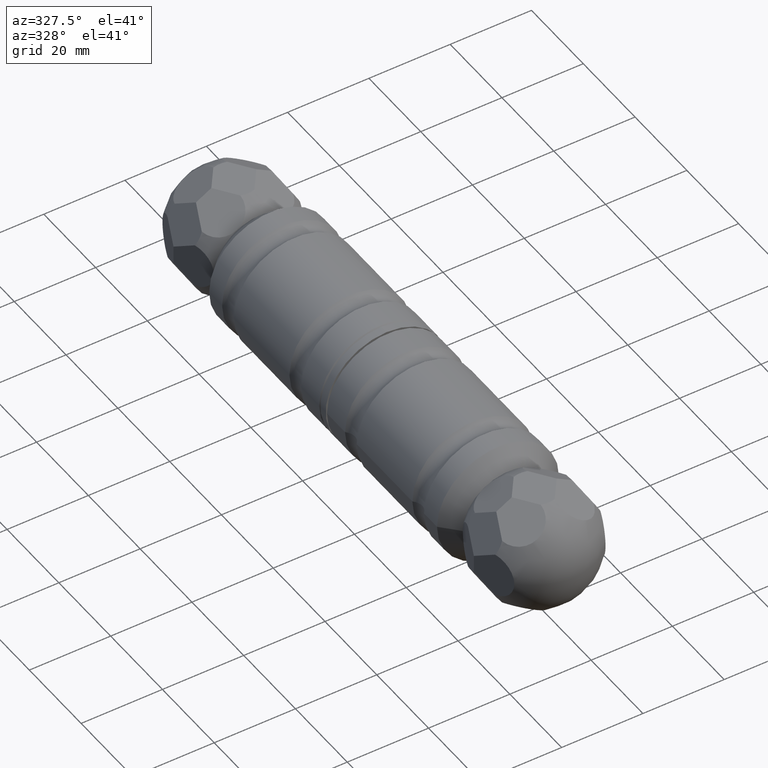
[diagram: clean part render]
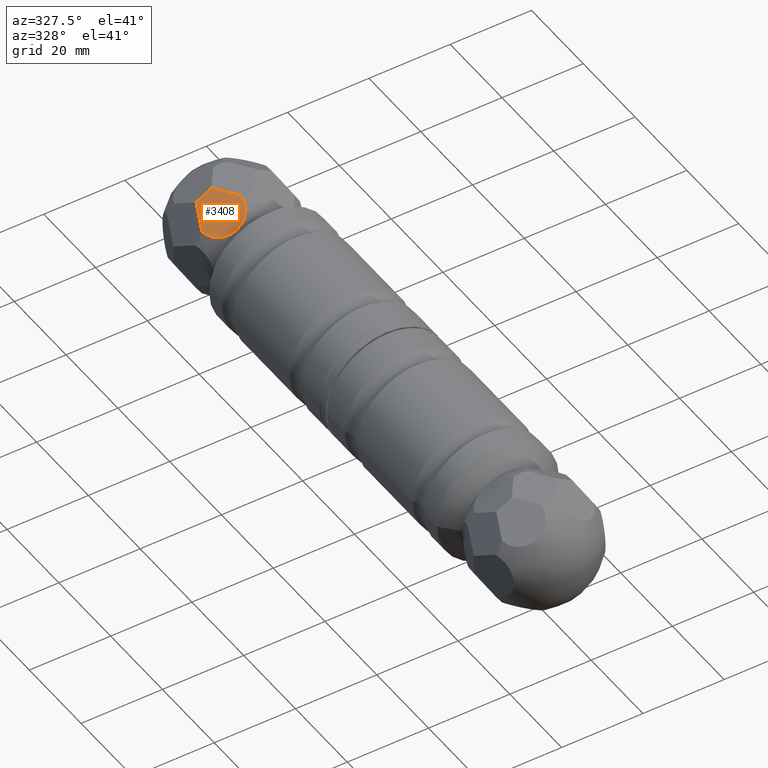
[diagram: same view with one face highlighted and labeled with its STEP entity id]
A machine part, auxiliary view. The second image highlights one B-rep face of the part: STEP entity #3408.
In plain terms, the highlighted planar face has unit normal (-0.4698, -0.342, 0.8138).
Its self-contained STEP definition (entity closure, byte-faithful):
#72 = CARTESIAN_POINT ( 'NONE',  ( -6.554356029981764031, 52.22881900060691152, 11.35247765482373339 ) ) ;
#251 = ORIENTED_EDGE ( 'NONE', *, *, #4534, .T. ) ;
#631 = CARTESIAN_POINT ( 'NONE',  ( -3.613609223000973536, 54.36950760911574321, 13.94999999999996732 ) ) ;
#821 = CARTESIAN_POINT ( 'NONE',  ( -5.561659592849577116, 56.99999999999999289, 13.93082705991515091 ) ) ;
#898 = CARTESIAN_POINT ( 'NONE',  ( -9.283620333189526619, 56.99999999999999289, 11.78195202456663715 ) ) ;
#966 = DIRECTION ( 'NONE',  ( -0.4698463103929579887, -0.3420201433256694346, 0.8137976813493712491 ) ) ;
#1343 = ORIENTED_EDGE ( 'NONE', *, *, #11094, .F. ) ;
#2104 = CARTESIAN_POINT ( 'NONE',  ( -6.554356029981764031, 52.22881900060691152, 11.35247765482373339 ) ) ;
#2267 = AXIS2_PLACEMENT_3D ( 'NONE', #72, #7396, #4395 ) ;
#2375 = LINE ( 'NONE', #631, #10034 ) ;
#2612 = DIRECTION ( 'NONE',  ( -0.2942623679600499531, -0.8084792113654930557, -0.5096773720623415382 ) ) ;
#2813 = LINE ( 'NONE', #5823, #5241 ) ;
#2901 = VERTEX_POINT ( 'NONE', #13322 ) ;
#3190 = CIRCLE ( 'NONE', #9601, 5.513392784846710803 ) ;
#3408 = ADVANCED_FACE ( 'NONE', ( #6758 ), #12972, .T. ) ;
#3483 = CARTESIAN_POINT ( 'NONE',  ( -5.513353776276184171, 56.97926024054347494, 13.94999999999995310 ) ) ;
#4395 = DIRECTION ( 'NONE',  ( 0.8660254037844846708, -2.655545633803654106E-13, 0.4999999999999203970 ) ) ;
#4415 = CARTESIAN_POINT ( 'NONE',  ( -1.713864669725770451, 51.75975497768799016, 13.94999999999999574 ) ) ;
#4534 = EDGE_CURVE ( 'NONE', #12325, #2901, #8865, .T. ) ;
#4927 = CARTESIAN_POINT ( 'NONE',  ( -6.554356029981764031, 52.22881900060691152, 11.35247765482373339 ) ) ;
#4931 = VERTEX_POINT ( 'NONE', #4415 ) ;
#5136 = CIRCLE ( 'NONE', #2267, 5.513392784846710803 ) ;
#5241 = VECTOR ( 'NONE', #8178, 1000.000000000000000 ) ;
#5751 = CARTESIAN_POINT ( 'NONE',  ( -10.27424977129254202, 54.36950760911571479, 10.10447738646844762 ) ) ;
#5823 = CARTESIAN_POINT ( 'NONE',  ( -7.422639963019544318, 56.99999999999999289, 12.85638954224088693 ) ) ;
#5896 = EDGE_CURVE ( 'NONE', #4931, #11486, #2375, .T. ) ;
#6097 = EDGE_CURVE ( 'NONE', #12325, #8752, #5136, .T. ) ;
#6603 = ORIENTED_EDGE ( 'NONE', *, *, #5896, .T. ) ;
#6758 = FACE_OUTER_BOUND ( 'NONE', #12821, .T. ) ;
#7255 = ORIENTED_EDGE ( 'NONE', *, *, #12914, .F. ) ;
#7339 = DIRECTION ( 'NONE',  ( -0.1710100716628361328, 0.9396926207859082059, 0.2961981327260236330 ) ) ;
#7396 = DIRECTION ( 'NONE',  ( 0.4698463103929579332, 0.3420201433256693790, -0.8137976813493713601 ) ) ;
#7631 = AXIS2_PLACEMENT_3D ( 'NONE', #2104, #12495, #10580 ) ;
#8178 = DIRECTION ( 'NONE',  ( 0.8660254037844363761, 8.636002062691930681E-17, 0.5000000000000041078 ) ) ;
#8196 = VECTOR ( 'NONE', #2612, 1000.000000000000000 ) ;
#8278 = CIRCLE ( 'NONE', #7631, 5.513392784846710803 ) ;
#8321 = VERTEX_POINT ( 'NONE', #821 ) ;
#8752 = VERTEX_POINT ( 'NONE', #898 ) ;
#8865 = LINE ( 'NONE', #5751, #8196 ) ;
#8986 = DIRECTION ( 'NONE',  ( 0.4698463103929579332, 0.3420201433256693790, -0.8137976813493713601 ) ) ;
#9299 = ORIENTED_EDGE ( 'NONE', *, *, #6097, .F. ) ;
#9601 = AXIS2_PLACEMENT_3D ( 'NONE', #4927, #8986, #11061 ) ;
#10034 = VECTOR ( 'NONE', #13153, 1000.000000000000000 ) ;
#10199 = AXIS2_PLACEMENT_3D ( 'NONE', #13154, #966, #7339 ) ;
#10376 = EDGE_CURVE ( 'NONE', #8752, #8321, #2813, .T. ) ;
#10461 = CARTESIAN_POINT ( 'NONE',  ( -9.324377494654964238, 56.97926024054345362, 11.74970443030588108 ) ) ;
#10580 = DIRECTION ( 'NONE',  ( 0.8660254037844363761, 0.000000000000000000, 0.5000000000000041078 ) ) ;
#11061 = DIRECTION ( 'NONE',  ( 0.8660254037844363761, 0.000000000000000000, 0.5000000000000041078 ) ) ;
#11094 = EDGE_CURVE ( 'NONE', #8321, #11486, #3190, .T. ) ;
#11486 = VERTEX_POINT ( 'NONE', #3483 ) ;
#12325 = VERTEX_POINT ( 'NONE', #10461 ) ;
#12495 = DIRECTION ( 'NONE',  ( 0.4698463103929579332, 0.3420201433256693790, -0.8137976813493713601 ) ) ;
#12821 = EDGE_LOOP ( 'NONE', ( #13442, #9299, #251, #7255, #6603, #1343 ) ) ;
#12914 = EDGE_CURVE ( 'NONE', #4931, #2901, #8278, .T. ) ;
#12972 = PLANE ( 'NONE',  #10199 ) ;
#13153 = DIRECTION ( 'NONE',  ( -0.5885247359201106754, 0.8084792113654896140, -6.227315285162814233E-15 ) ) ;
#13154 = CARTESIAN_POINT ( 'NONE',  ( -6.554356029981762255, 52.22881900060693994, 11.35247765482373161 ) ) ;
#13322 = CARTESIAN_POINT ( 'NONE',  ( -11.22412204793012158, 51.75975497768799016, 8.459250342631023045 ) ) ;
#13442 = ORIENTED_EDGE ( 'NONE', *, *, #10376, .F. ) ;